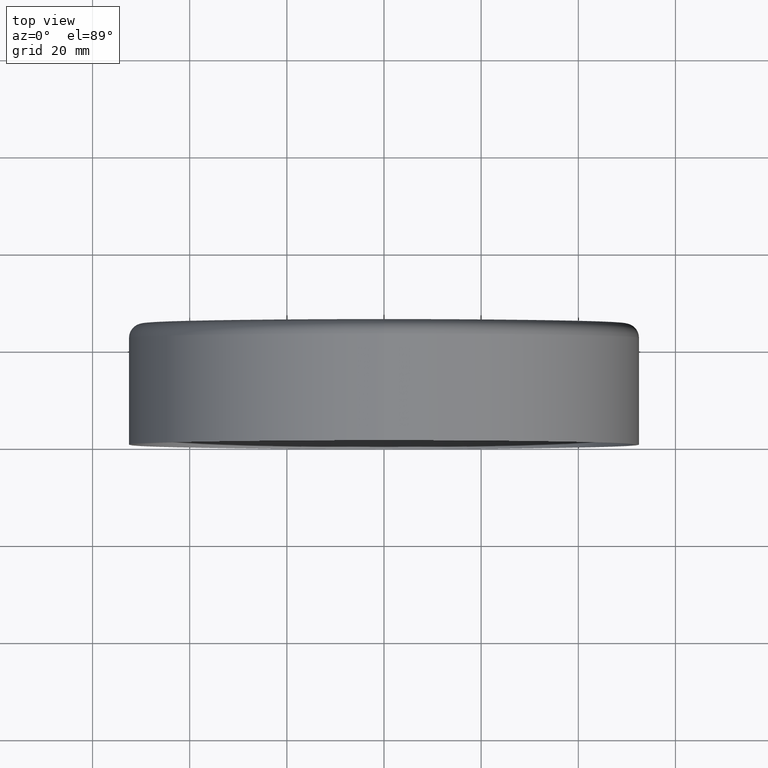
[diagram: clean part render]
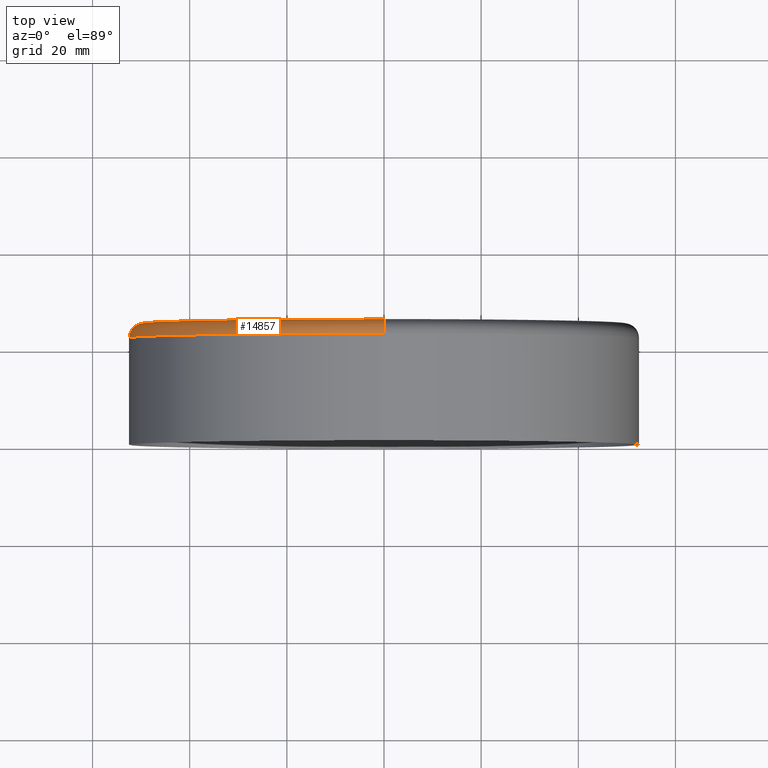
[diagram: same view with one face highlighted and labeled with its STEP entity id]
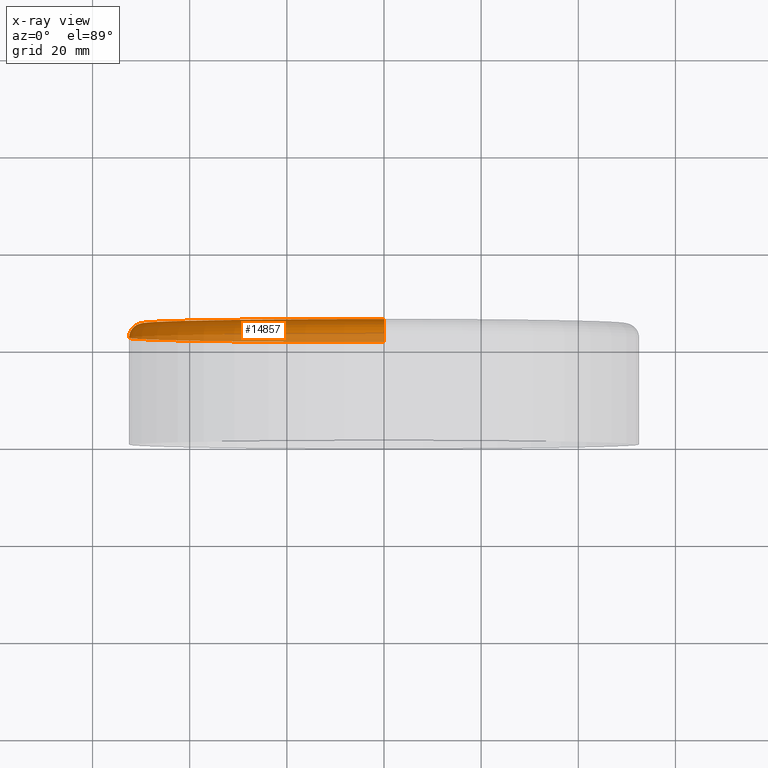
[diagram: x-ray of the same camera — body ghosted, the highlighted face saturated]
A machine part, top view. The second image highlights one B-rep face of the part: STEP entity #14857.
The next image is the same camera in x-ray: the body ghosted, the highlighted face saturated — about 33% of this face is hidden behind the body in this view.
In plain terms, the highlighted toroidal blend (fillet) surface has major radius 49.5 mm and minor (blend) radius 3 mm.
Its self-contained STEP definition (entity closure, byte-faithful):
#215 = ORIENTED_EDGE ( 'NONE', *, *, #5799, .F. ) ;
#354 = VERTEX_POINT ( 'NONE', #4848 ) ;
#437 = CARTESIAN_POINT ( 'NONE',  ( 0.000000000000000000, 22.00000000000000355, 0.000000000000000000 ) ) ;
#548 = VERTEX_POINT ( 'NONE', #9078 ) ;
#575 = AXIS2_PLACEMENT_3D ( 'NONE', #14842, #11166, #13641 ) ;
#643 = DIRECTION ( 'NONE',  ( -0.000000000000000000, -1.000000000000000000, -0.000000000000000000 ) ) ;
#711 = AXIS2_PLACEMENT_3D ( 'NONE', #437, #2847, #13369 ) ;
#1017 = CIRCLE ( 'NONE', #575, 3.000000000000002665 ) ;
#1756 = CARTESIAN_POINT ( 'NONE',  ( 0.000000000000000000, 22.00000000000000355, -52.50000000000000711 ) ) ;
#1787 = DIRECTION ( 'NONE',  ( -1.224646799147351975E-16, 0.000000000000000000, -1.000000000000000000 ) ) ;
#2847 = DIRECTION ( 'NONE',  ( -0.000000000000000000, -1.000000000000000000, -0.000000000000000000 ) ) ;
#2961 = AXIS2_PLACEMENT_3D ( 'NONE', #15440, #5858, #5797 ) ;
#3108 = DIRECTION ( 'NONE',  ( 1.000000000000000000, 0.000000000000000000, -1.224646799147353207E-16 ) ) ;
#3582 = EDGE_CURVE ( 'NONE', #4125, #548, #15075, .T. ) ;
#4125 = VERTEX_POINT ( 'NONE', #4713 ) ;
#4193 = CARTESIAN_POINT ( 'NONE',  ( 6.062001655779398511E-15, 22.00000000000000355, 49.50000000000000000 ) ) ;
#4713 = CARTESIAN_POINT ( 'NONE',  ( 6.245698675651501233E-15, 25.00000000000000000, 49.50000000000000000 ) ) ;
#4793 = EDGE_LOOP ( 'NONE', ( #215, #7084, #12243, #5462 ) ) ;
#4848 = CARTESIAN_POINT ( 'NONE',  ( 6.429395695523604744E-15, 22.00000000000000355, 52.50000000000000711 ) ) ;
#5353 = VERTEX_POINT ( 'NONE', #1756 ) ;
#5462 = ORIENTED_EDGE ( 'NONE', *, *, #9008, .F. ) ;
#5469 = TOROIDAL_SURFACE ( 'NONE', #711, 49.50000000000000000, 3.000000000000000888 ) ;
#5797 = DIRECTION ( 'NONE',  ( 0.000000000000000000, 0.000000000000000000, -1.000000000000000000 ) ) ;
#5799 = EDGE_CURVE ( 'NONE', #4125, #354, #15048, .T. ) ;
#5858 = DIRECTION ( 'NONE',  ( -0.000000000000000000, -1.000000000000000000, -0.000000000000000000 ) ) ;
#6423 = DIRECTION ( 'NONE',  ( 0.000000000000000000, 0.000000000000000000, -1.000000000000000000 ) ) ;
#7084 = ORIENTED_EDGE ( 'NONE', *, *, #3582, .T. ) ;
#7519 = EDGE_CURVE ( 'NONE', #548, #5353, #1017, .T. ) ;
#8619 = CIRCLE ( 'NONE', #10921, 52.50000000000000711 ) ;
#9008 = EDGE_CURVE ( 'NONE', #354, #5353, #8619, .T. ) ;
#9078 = CARTESIAN_POINT ( 'NONE',  ( 0.000000000000000000, 25.00000000000000000, -49.50000000000000000 ) ) ;
#10108 = CARTESIAN_POINT ( 'NONE',  ( 0.000000000000000000, 22.00000000000000355, 0.000000000000000000 ) ) ;
#10921 = AXIS2_PLACEMENT_3D ( 'NONE', #10108, #643, #6423 ) ;
#11166 = DIRECTION ( 'NONE',  ( -1.000000000000000000, 0.000000000000000000, 0.000000000000000000 ) ) ;
#11606 = FACE_OUTER_BOUND ( 'NONE', #4793, .T. ) ;
#12243 = ORIENTED_EDGE ( 'NONE', *, *, #7519, .T. ) ;
#13369 = DIRECTION ( 'NONE',  ( 0.000000000000000000, 0.000000000000000000, -1.000000000000000000 ) ) ;
#13641 = DIRECTION ( 'NONE',  ( 0.000000000000000000, 0.000000000000000000, 1.000000000000000000 ) ) ;
#14748 = AXIS2_PLACEMENT_3D ( 'NONE', #4193, #3108, #1787 ) ;
#14842 = CARTESIAN_POINT ( 'NONE',  ( 0.000000000000000000, 22.00000000000000355, -49.50000000000000000 ) ) ;
#14857 = ADVANCED_FACE ( 'NONE', ( #11606 ), #5469, .T. ) ;
#15048 = CIRCLE ( 'NONE', #14748, 3.000000000000002665 ) ;
#15075 = CIRCLE ( 'NONE', #2961, 49.50000000000000000 ) ;
#15440 = CARTESIAN_POINT ( 'NONE',  ( 0.000000000000000000, 25.00000000000000000, 0.000000000000000000 ) ) ;